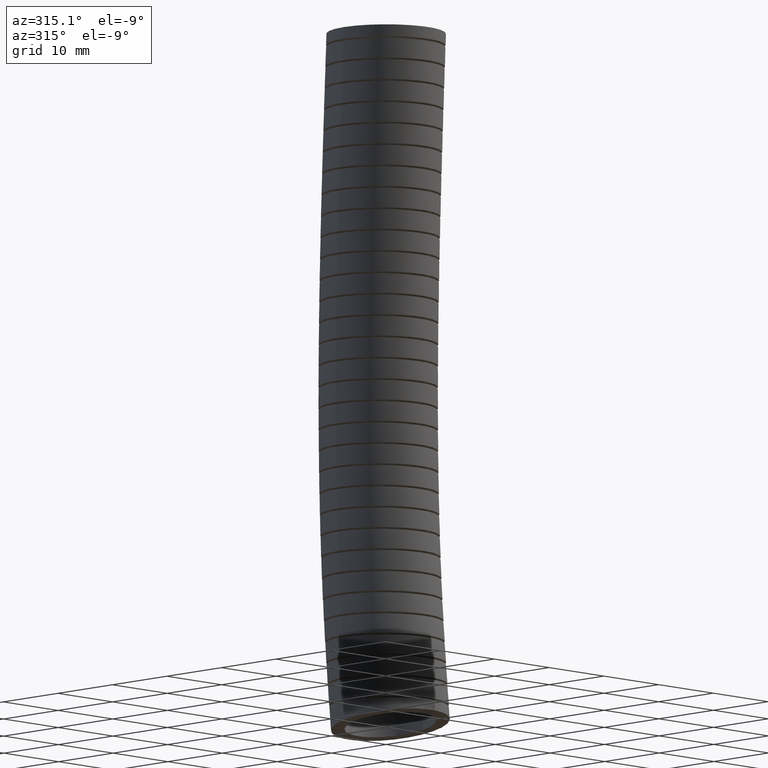
[diagram: clean part render]
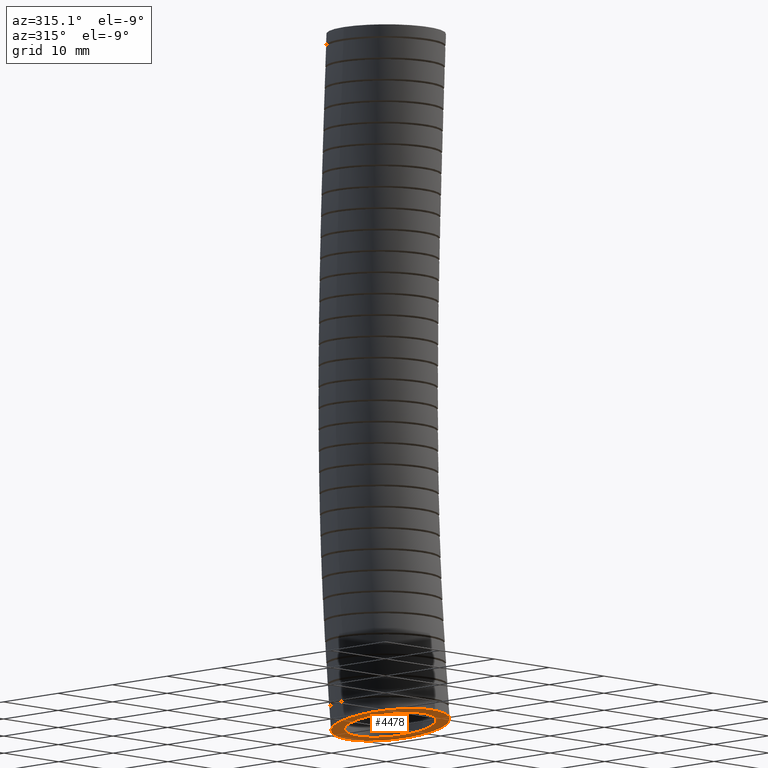
[diagram: same view with one face highlighted and labeled with its STEP entity id]
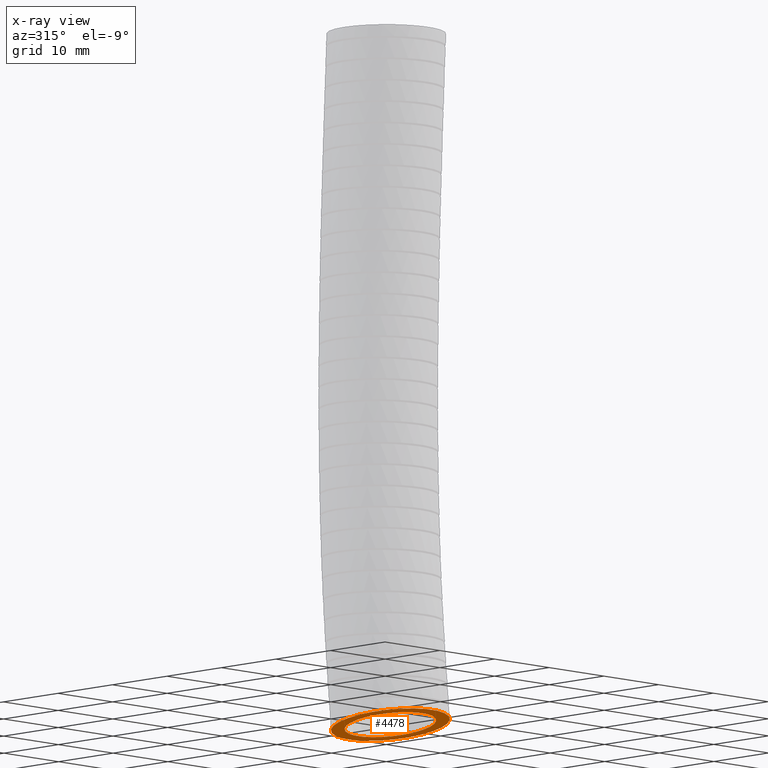
[diagram: x-ray of the same camera — body ghosted, the highlighted face saturated]
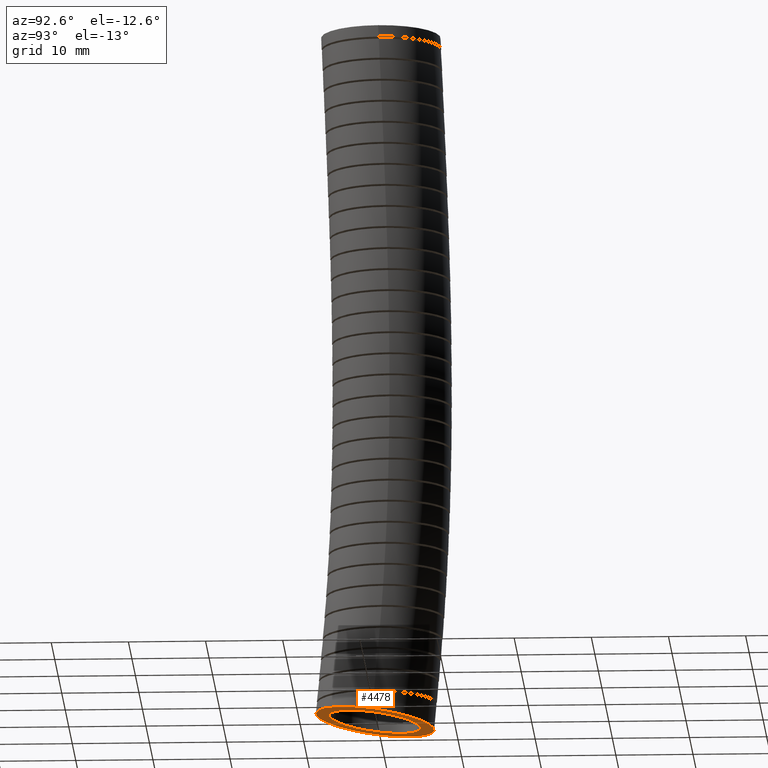
[diagram: same view with one face highlighted and labeled with its STEP entity id]
A machine part, auxiliary view. The second image highlights one B-rep face of the part: STEP entity #4478.
The next image is the same camera in x-ray: the body ghosted, the highlighted face saturated — about 0% of this face is hidden behind the body in this view.
A second angle (auxiliary view) of the same face is appended — the face is thin or edge-on in the first view.
In plain terms, the highlighted planar face has unit normal (0, 0.1406, 0.9901).
Its self-contained STEP definition (entity closure, byte-faithful):
#29 = DIRECTION ( 'NONE',  ( 1.000000000000000000, 0.0000000000000000000, 0.0000000000000000000 ) ) ;
#280 = DIRECTION ( 'NONE',  ( 0.0000000000000000000, 0.1406093177911149100, 0.9900651593457461300 ) ) ;
#281 = CARTESIAN_POINT ( 'NONE',  ( 0.0000000000000000000, -0.02999999999999998800, -3.569999999999999000 ) ) ;
#282 = AXIS2_PLACEMENT_3D ( 'NONE', #281, #280, #29 ) ;
#283 = CIRCLE ( 'NONE', #282, 0.2349999999999999600 ) ;
#365 = FACE_OUTER_BOUND ( 'NONE', #4468, .T. ) ;
#367 = FACE_BOUND ( 'NONE', #4495, .T. ) ;
#369 = DIRECTION ( 'NONE',  ( 1.000000000000000000, 0.0000000000000000000, 0.0000000000000000000 ) ) ;
#370 = DIRECTION ( 'NONE',  ( 0.0000000000000000000, 0.1406093177911148800, 0.9900651593457460200 ) ) ;
#371 = CARTESIAN_POINT ( 'NONE',  ( 0.0000000000000000000, -0.02999999999999998800, -3.569999999999999000 ) ) ;
#372 = AXIS2_PLACEMENT_3D ( 'NONE', #371, #370, #369 ) ;
#374 = PLANE ( 'NONE',  #372 ) ;
#3553 = VERTEX_POINT ( 'NONE', #12786 ) ;
#3557 = EDGE_CURVE ( 'NONE', #3559, #3553, #12736, .T. ) ;
#3559 = VERTEX_POINT ( 'NONE', #12738 ) ;
#4232 = VERTEX_POINT ( 'NONE', #10525 ) ;
#4235 = EDGE_CURVE ( 'NONE', #4232, #4236, #10520, .T. ) ;
#4236 = VERTEX_POINT ( 'NONE', #10516 ) ;
#4316 = EDGE_CURVE ( 'NONE', #4236, #4232, #15871, .T. ) ;
#4466 = ORIENTED_EDGE ( 'NONE', *, *, #4467, .T. ) ;
#4467 = EDGE_CURVE ( 'NONE', #3553, #3559, #283, .T. ) ;
#4468 = EDGE_LOOP ( 'NONE', ( #4469, #4470 ) ) ;
#4469 = ORIENTED_EDGE ( 'NONE', *, *, #4316, .F. ) ;
#4470 = ORIENTED_EDGE ( 'NONE', *, *, #4235, .F. ) ;
#4478 = ADVANCED_FACE ( 'NONE', ( #367, #365 ), #374, .F. ) ;
#4479 = ORIENTED_EDGE ( 'NONE', *, *, #3557, .T. ) ;
#4495 = EDGE_LOOP ( 'NONE', ( #4479, #4466 ) ) ;
#10516 = CARTESIAN_POINT ( 'NONE',  ( 0.3049999999999999900, -0.02999999999999998800, -3.569999999999999000 ) ) ;
#10517 = DIRECTION ( 'NONE',  ( 1.000000000000000000, 0.0000000000000000000, 0.0000000000000000000 ) ) ;
#10518 = DIRECTION ( 'NONE',  ( 0.0000000000000000000, 0.1406093177911149100, 0.9900651593457461300 ) ) ;
#10519 = AXIS2_PLACEMENT_3D ( 'NONE', #10567, #10518, #10517 ) ;
#10520 = CIRCLE ( 'NONE', #10519, 0.3049999999999999900 ) ;
#10525 = CARTESIAN_POINT ( 'NONE',  ( -0.3050000000000000500, -0.02999999999999988400, -3.569999999999999000 ) ) ;
#10567 = CARTESIAN_POINT ( 'NONE',  ( 0.0000000000000000000, -0.02999999999999998800, -3.569999999999999000 ) ) ;
#12718 = DIRECTION ( 'NONE',  ( 1.000000000000000000, 0.0000000000000000000, 0.0000000000000000000 ) ) ;
#12736 = CIRCLE ( 'NONE', #12878, 0.2349999999999999600 ) ;
#12738 = CARTESIAN_POINT ( 'NONE',  ( 0.2349999999999999600, -0.02999999999999998800, -3.569999999999999000 ) ) ;
#12786 = CARTESIAN_POINT ( 'NONE',  ( -0.2350000000000000100, -0.02999999999999989500, -3.569999999999999000 ) ) ;
#12876 = DIRECTION ( 'NONE',  ( 0.0000000000000000000, 0.1406093177911149100, 0.9900651593457461300 ) ) ;
#12877 = CARTESIAN_POINT ( 'NONE',  ( 0.0000000000000000000, -0.02999999999999998800, -3.569999999999999000 ) ) ;
#12878 = AXIS2_PLACEMENT_3D ( 'NONE', #12877, #12876, #12718 ) ;
#15871 = CIRCLE ( 'NONE', #15894, 0.3049999999999999900 ) ;
#15891 = DIRECTION ( 'NONE',  ( 1.000000000000000000, 0.0000000000000000000, 0.0000000000000000000 ) ) ;
#15892 = DIRECTION ( 'NONE',  ( 0.0000000000000000000, 0.1406093177911149100, 0.9900651593457461300 ) ) ;
#15893 = CARTESIAN_POINT ( 'NONE',  ( 0.0000000000000000000, -0.02999999999999998800, -3.569999999999999000 ) ) ;
#15894 = AXIS2_PLACEMENT_3D ( 'NONE', #15893, #15892, #15891 ) ;